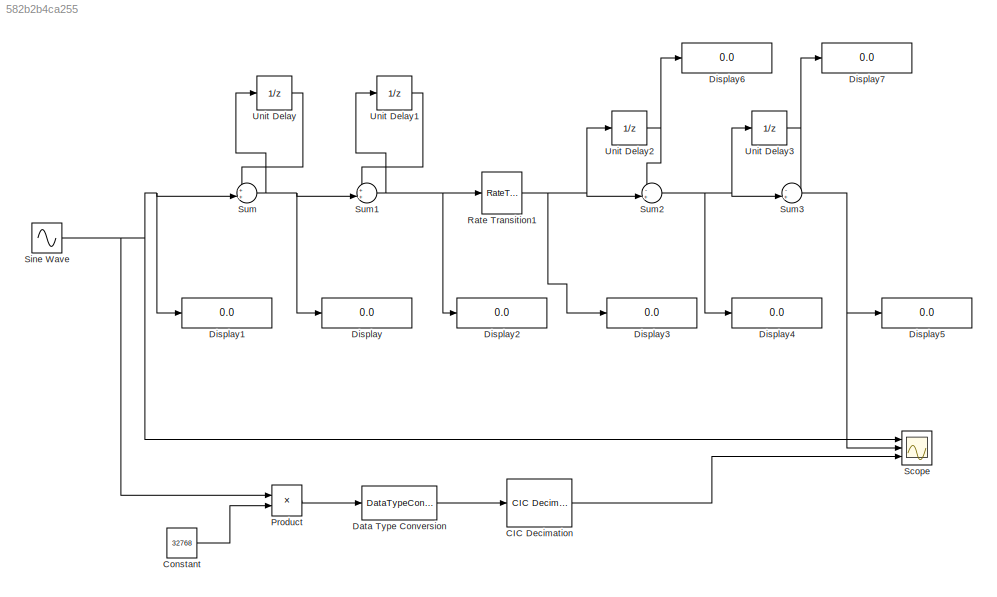
MODEL slx_582b2b4ca255
KIND model
BLOCK [Reference] CIC Decimation  REF=dspmlti4/CIC
Decimation
  BPS = [16 16 16 16]
  FLPS = 0
  M = 1
  N = 2
  Ports = [1, 1]
  R = 2
  RateOptions = Allow multirate processing
  SourceBlock = dspmlti4/CIC\nDecimation
  SourceType = CIC Decimation
  UserDataPersistent = on
  filtFrom = Dialog
  filterInternals = Full precision
  filtobj = Hm_decim
  framing = Maintain input frame rate
  ftype = Decimator
  launchFVT = off
  outputFracLength = 0
  outputWordLength = 32
BLOCK [Constant] Constant
  Value = 32768
BLOCK [DataTypeConversion] Data Type Conversion
  OutDataTypeStr = int32
  RndMeth = Floor
  SaturateOnIntegerOverflow = off
BLOCK [Display] Display
  Decimation = 1
  Ports = [1]
BLOCK [Display] Display1
  Decimation = 1
  Ports = [1]
BLOCK [Display] Display2
  Decimation = 1
  Ports = [1]
BLOCK [Display] Display3
  Decimation = 1
  Ports = [1]
BLOCK [Display] Display4
  Decimation = 1
  Ports = [1]
BLOCK [Display] Display5
  Decimation = 1
  Ports = [1]
BLOCK [Display] Display6
  Decimation = 1
  Ports = [1]
BLOCK [Display] Display7
  Decimation = 1
  Ports = [1]
BLOCK [Product] Product
  InputSameDT = off
  OutDataTypeStr = Inherit: Inherit via internal rule
  Ports = [2, 1]
  RndMeth = Floor
  SaturateOnIntegerOverflow = off
BLOCK [RateTransition] Rate Transition1
  OutPortSampleTime = 1/500
BLOCK [Scope] Scope
  Floating = off
  LimitDataPoints = off
  NumInputPorts = 3
  Ports = [3]
  ShowLegends = off
  TimeRange = 0.1
  YMax = 5~5~5
  YMin = -5~-5~-5
  ZoomMode = xonly
BLOCK [Sin] Sine Wave
  Frequency = 411*pi*2
  Ports = [0, 1]
  SampleTime = 1/1000
BLOCK [Sum] Sum
  IconShape = round
  InputSameDT = off
  Inputs = ++|
  OutDataTypeStr = Inherit: Inherit via internal rule
  Ports = [2, 1]
  SaturateOnIntegerOverflow = off
BLOCK [Sum] Sum1
  IconShape = round
  InputSameDT = off
  Inputs = ++|
  OutDataTypeStr = Inherit: Inherit via internal rule
  Ports = [2, 1]
  SaturateOnIntegerOverflow = off
BLOCK [Sum] Sum2
  IconShape = round
  InputSameDT = off
  Inputs = -+|
  OutDataTypeStr = Inherit: Inherit via internal rule
  Ports = [2, 1]
  SaturateOnIntegerOverflow = off
BLOCK [Sum] Sum3
  IconShape = round
  InputSameDT = off
  Inputs = -+|
  OutDataTypeStr = Inherit: Inherit via internal rule
  Ports = [2, 1]
  SaturateOnIntegerOverflow = off
BLOCK [UnitDelay] Unit Delay
  InputProcessing = Elements as channels (sample based)
  SampleTime = -1
BLOCK [UnitDelay] Unit Delay1
  InputProcessing = Elements as channels (sample based)
  SampleTime = -1
BLOCK [UnitDelay] Unit Delay2
  InputProcessing = Elements as channels (sample based)
  SampleTime = -1
BLOCK [UnitDelay] Unit Delay3
  InputProcessing = Elements as channels (sample based)
  SampleTime = -1
LINE CIC Decimation:1 -> Scope:3
LINE Constant:1 -> Product:2
LINE Data Type Conversion:1 -> CIC Decimation:1
LINE Product:1 -> Data Type Conversion:1
NET Rate Transition1:1 -> Display3:1, Sum2:2, Unit Delay2:1
NET Sine Wave:1 -> Display1:1, Product:1, Scope:1, Sum:2
NET Sum1:1 -> Display2:1, Rate Transition1:1, Unit Delay1:1
NET Sum2:1 -> Display4:1, Sum3:2, Unit Delay3:1
NET Sum3:1 -> Display5:1, Scope:2
NET Sum:1 -> Display:1, Sum1:2, Unit Delay:1
LINE Unit Delay1:1 -> Sum1:1
NET Unit Delay2:1 -> Display6:1, Sum2:1
NET Unit Delay3:1 -> Display7:1, Sum3:1
LINE Unit Delay:1 -> Sum:1
note: NET lines group one-source signal fan-out (src -> all destinations, sorted); 1:1 wires keep LINE
